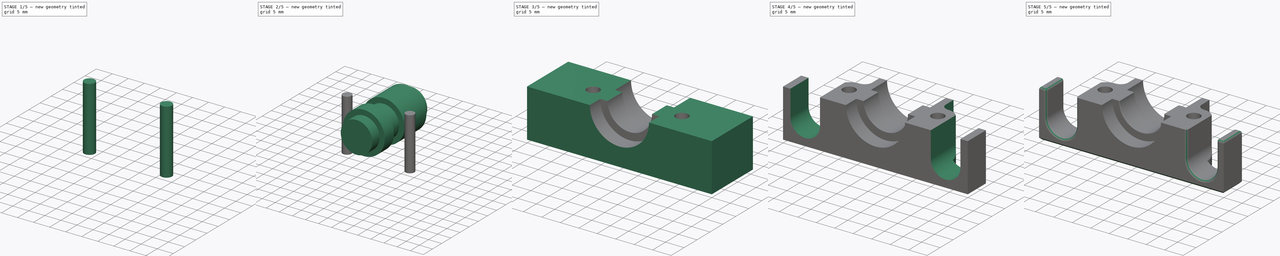
[diagram: build sequence overview — one tinted view per stage of 5, left to right]
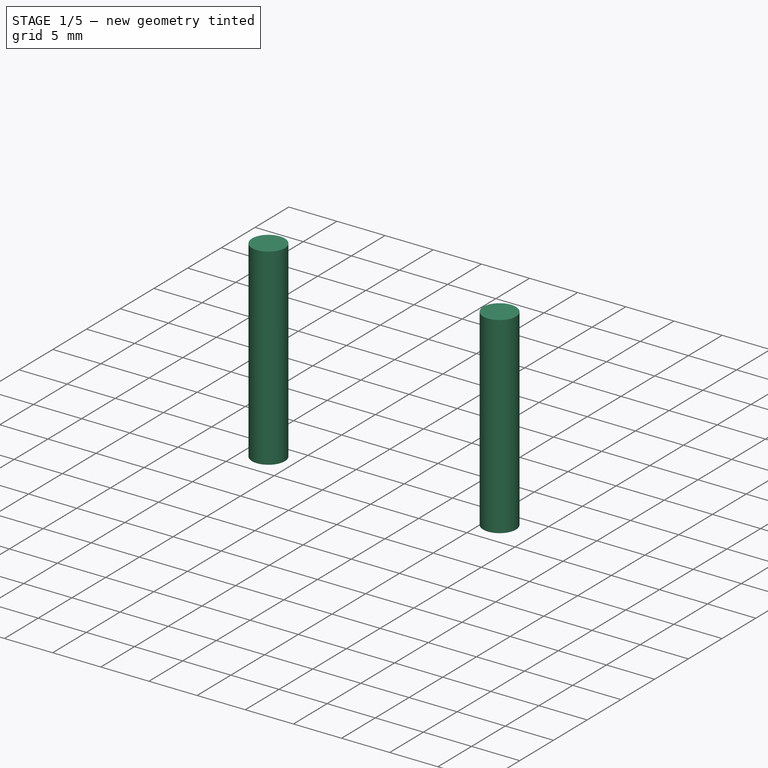
[diagram: stage 1 of 5 — iso view after this stage's code; geometry added in this stage tinted green]
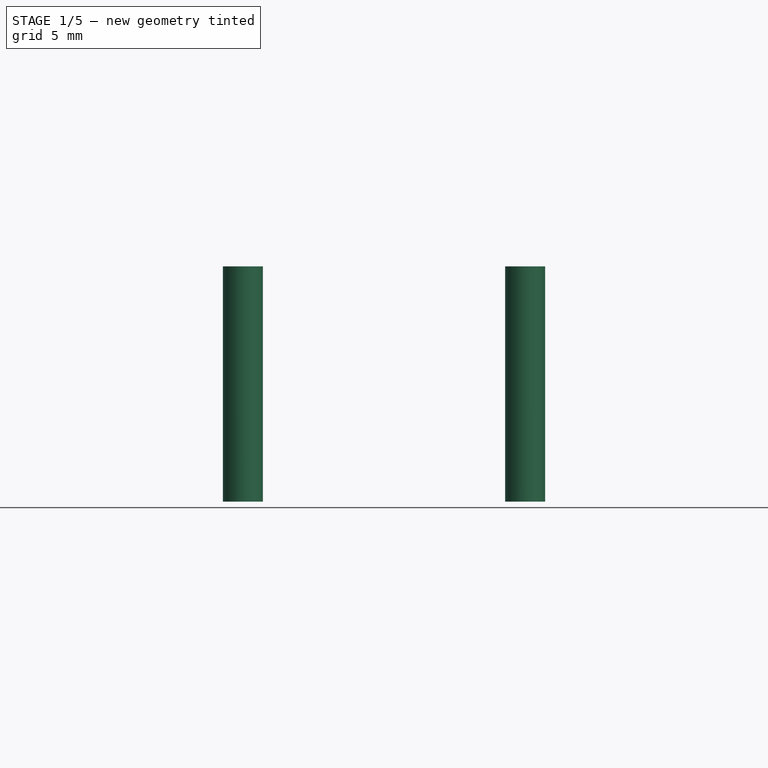
[diagram: stage 1 of 5 — front view after this stage's code; geometry added in this stage tinted green]
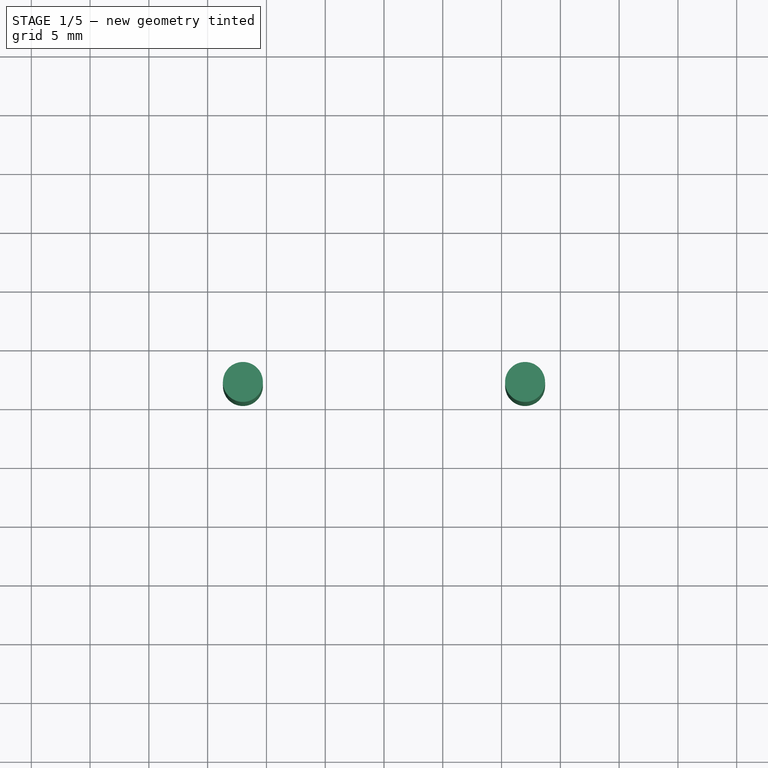
[diagram: stage 1 of 5 — top view after this stage's code; geometry added in this stage tinted green]
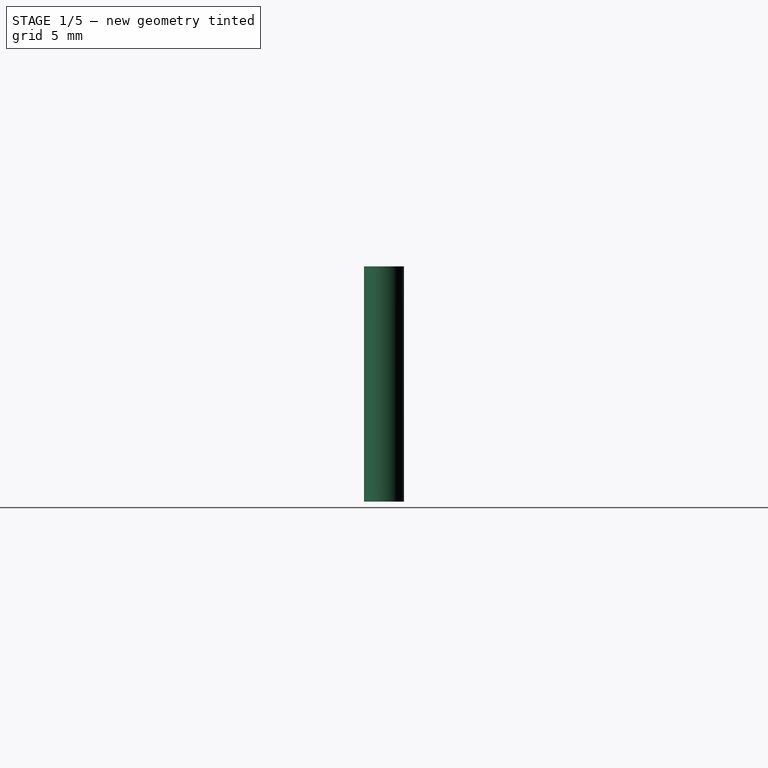
[diagram: stage 1 of 5 — right view after this stage's code; geometry added in this stage tinted green]
FCSTD DOCUMENT  (FreeCAD 0.16R6707 (Git))
Label: e3d_lalita_base
License: CreativeCommons Attribution-NonCommercial-ShareAlike
LicenseURL: http://creativecommons.org/licenses/by-nc-sa/4.0/
objects: Part::Cylinder×5, Part::MultiFuse×2, Part::Cut×2, Sketcher::SketchObject×2, PartDesign::Pocket×2, PartDesign::Fillet×2, Part::Box×1, PartDesign::Mirrored×1, PartDesign::Chamfer×1
note: 20 computed .brp shape members not serialized (recipe doc carries the construction recipe); baked Part::Feature solids carry a one-line shape summary decoded from their .brp

FEATURE [Part::Cylinder] Cylinder003  label="Cilindro003"
  Angle = 360
  Height = 20
  Placement = pos=(12,7,0) rot=(0,0,1;0rad)
  Radius = 1.7
FEATURE [Part::Cylinder] Cylinder004  label="Cilindro004"
  Angle = 360
  Height = 20
  Placement = pos=(-12,7,0) rot=(0,0,1;0rad)
  Radius = 1.7
FEATURE [Part::MultiFuse] Fusion001  label="tornillos"
  Shapes = -> [Cylinder003,Cylinder004]
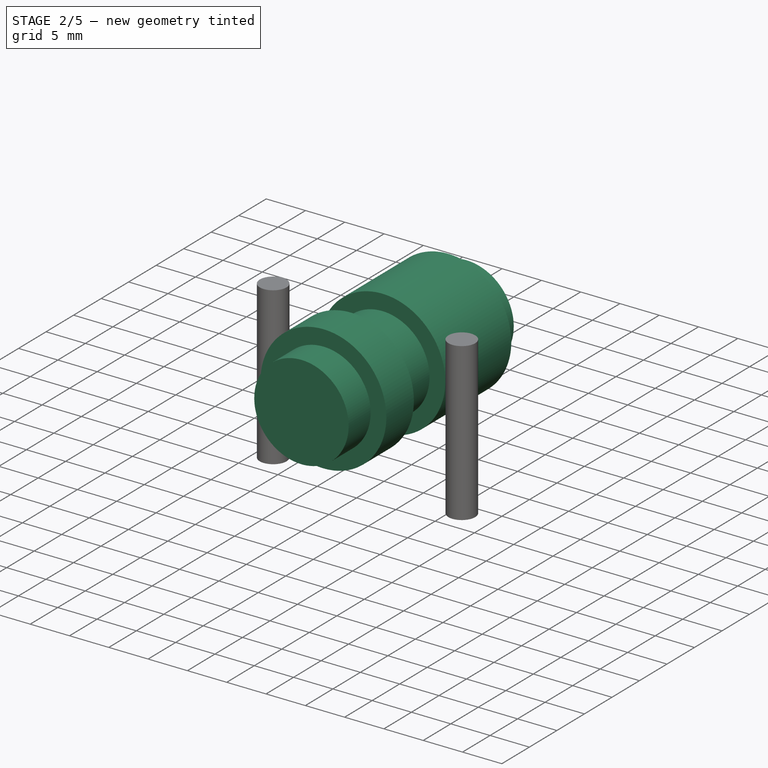
[diagram: stage 2 of 5 — iso view after this stage's code; geometry added in this stage tinted green]
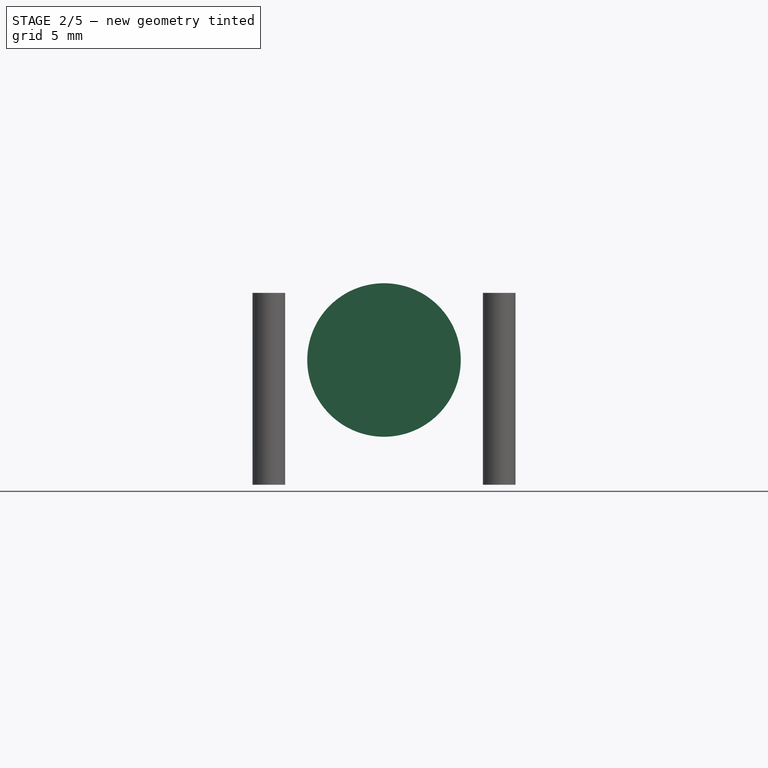
[diagram: stage 2 of 5 — front view after this stage's code; geometry added in this stage tinted green]
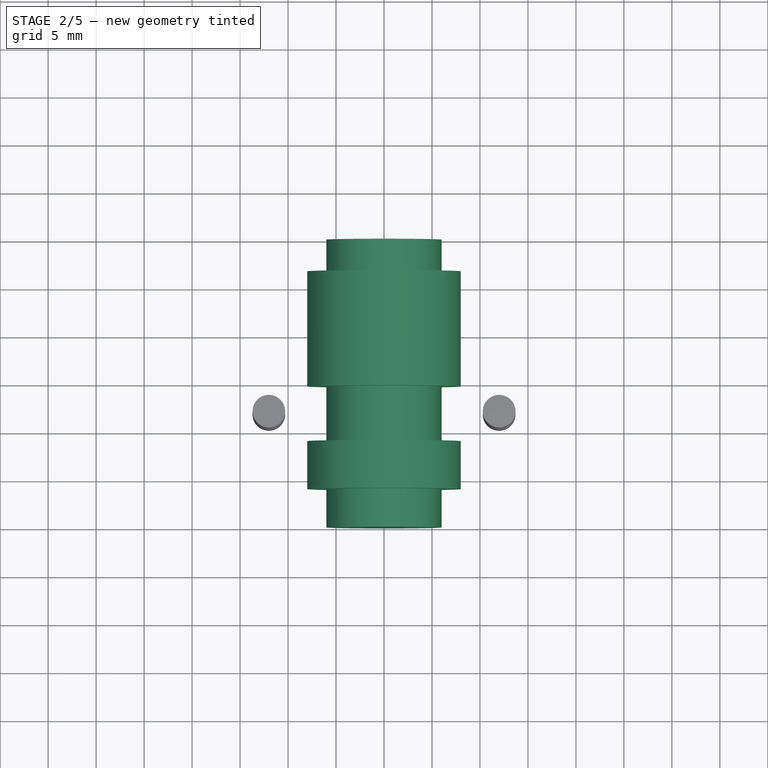
[diagram: stage 2 of 5 — top view after this stage's code; geometry added in this stage tinted green]
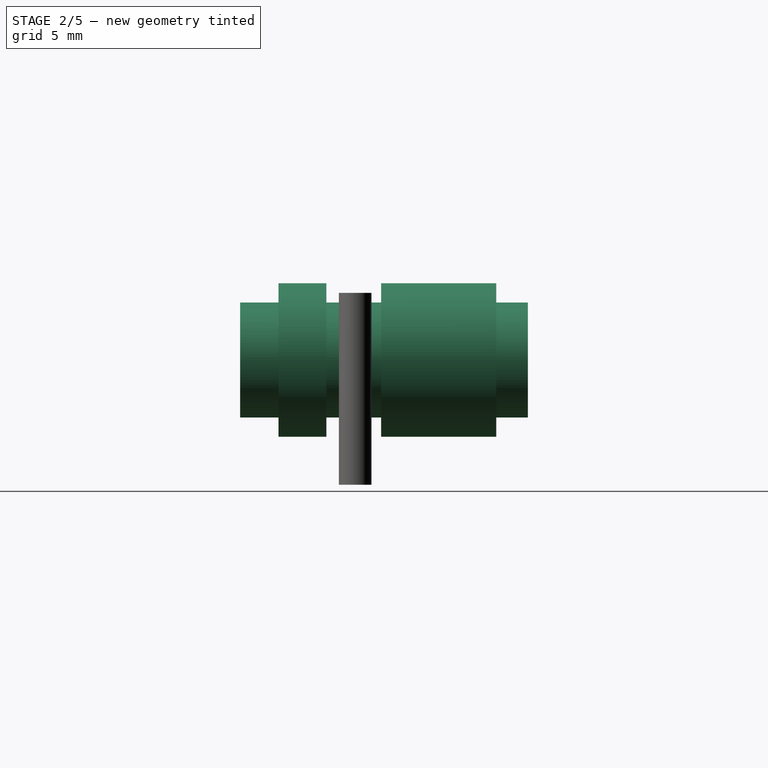
[diagram: stage 2 of 5 — right view after this stage's code; geometry added in this stage tinted green]
FEATURE [Part::Cylinder] Cylinder  label="Cilindro"
  Angle = 360
  Height = 30
  Placement = pos=(0,-5,13) rot=(-1,0,0;1.5708rad)
  Radius = 6
FEATURE [Part::Cylinder] Cylinder001  label="Cilindro001"
  Angle = 360
  Height = 5
  Placement = pos=(0,-1,13) rot=(-1,0,0;1.5708rad)
  Radius = 8
FEATURE [Part::Cylinder] Cylinder002  label="Cilindro002"
  Angle = 360
  Height = 12
  Placement = pos=(0,9.7,13) rot=(-1,0,0;1.5708rad)
  Radius = 8
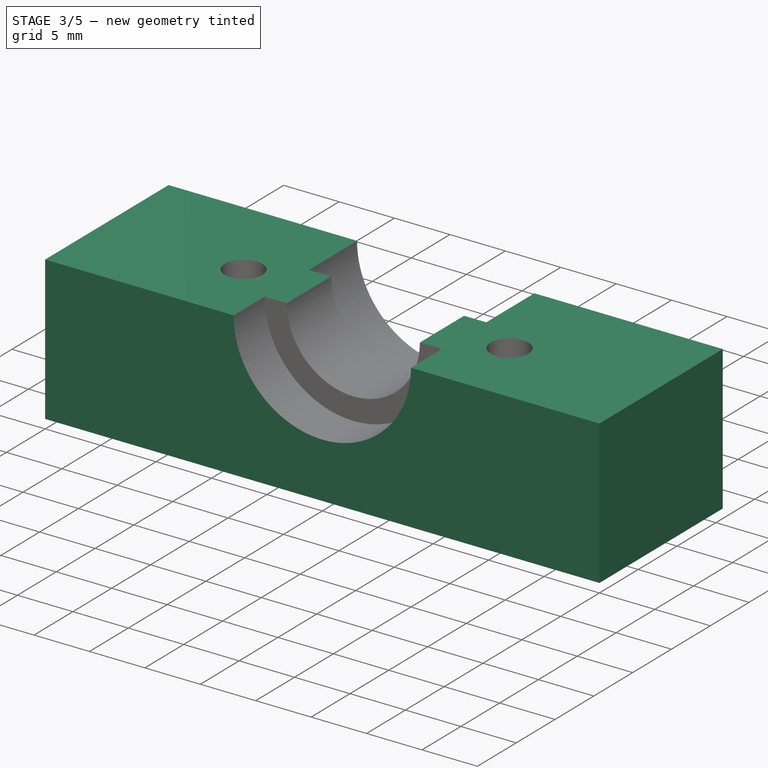
[diagram: stage 3 of 5 — iso view after this stage's code; geometry added in this stage tinted green]
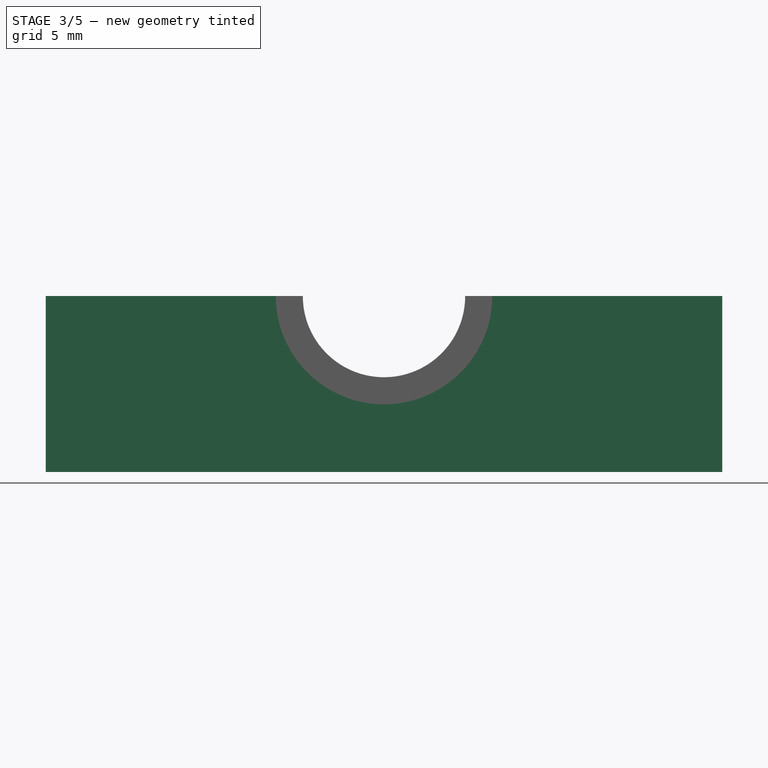
[diagram: stage 3 of 5 — front view after this stage's code; geometry added in this stage tinted green]
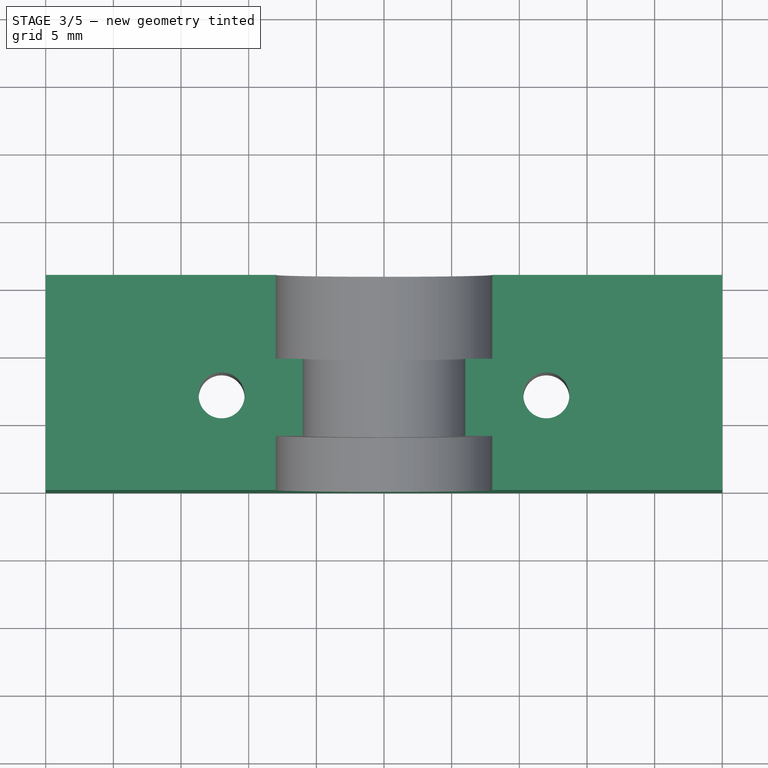
[diagram: stage 3 of 5 — top view after this stage's code; geometry added in this stage tinted green]
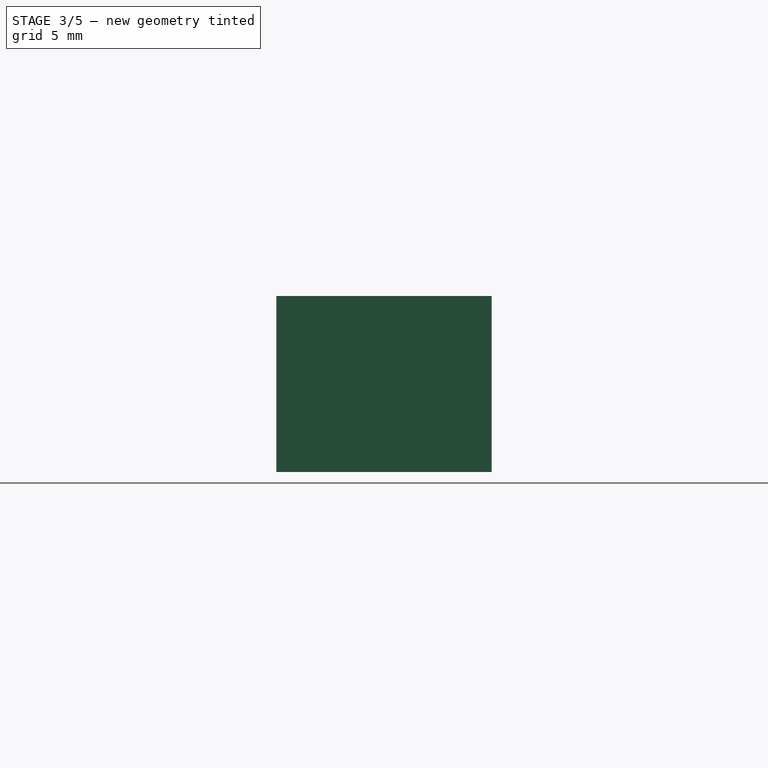
[diagram: stage 3 of 5 — right view after this stage's code; geometry added in this stage tinted green]
FEATURE [Part::Box] Box  label="Cubo"
  Height = 13
  Length = 50
  Placement = pos=(-25,0,0) rot=(0,0,1;0rad)
  Width = 15.9
FEATURE [Part::MultiFuse] Fusion  label="cabeza_hot_end"
  Shapes = -> [Cylinder002,Cylinder001,Cylinder]
FEATURE [Part::Cut] Cut
  Base = -> Box
  Tool = -> Fusion
FEATURE [Part::Cut] Cut001
  Base = -> Cut
  Tool = -> Fusion001
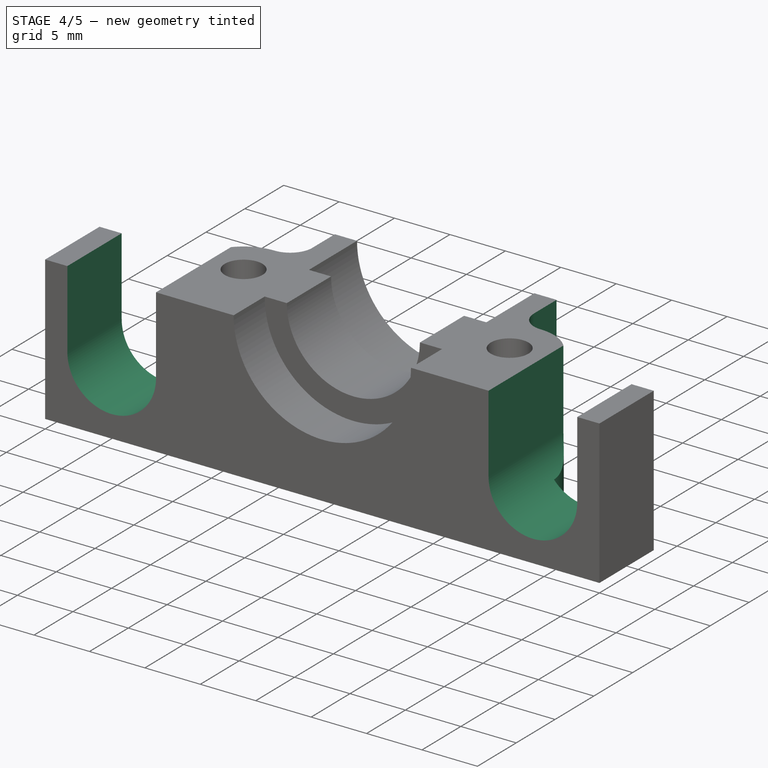
[diagram: stage 4 of 5 — iso view after this stage's code; geometry added in this stage tinted green]
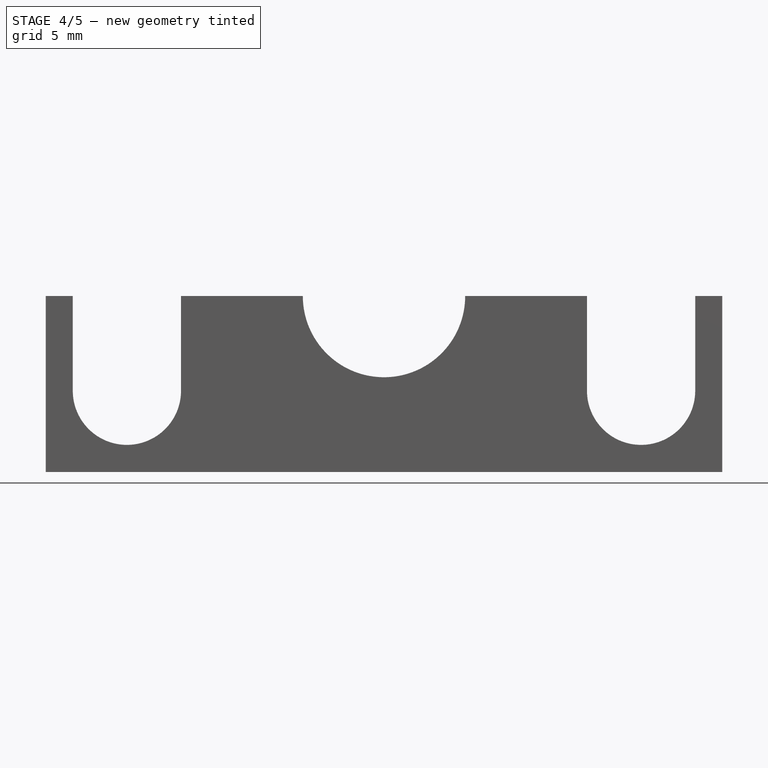
[diagram: stage 4 of 5 — front view after this stage's code; geometry added in this stage tinted green]
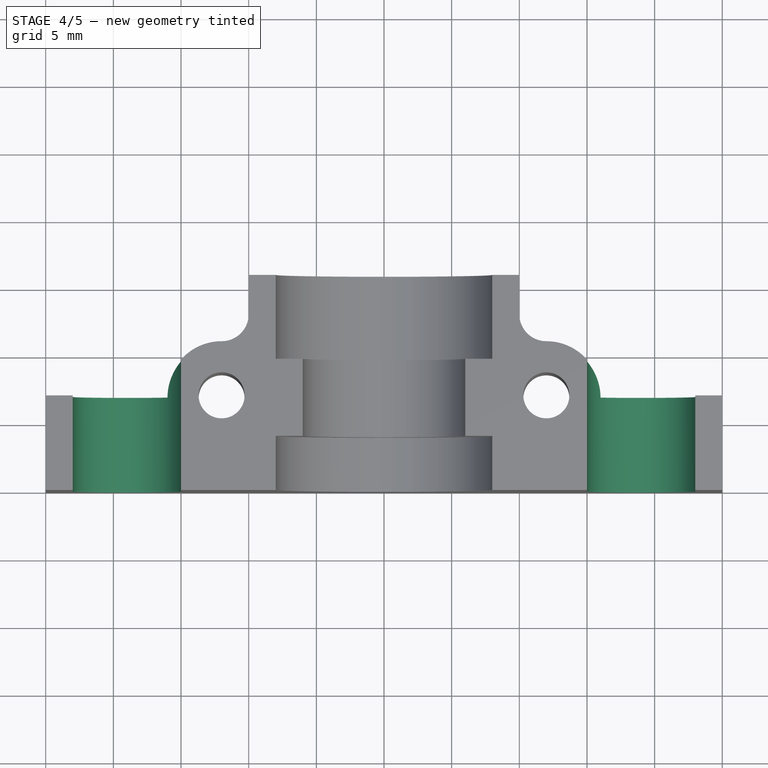
[diagram: stage 4 of 5 — top view after this stage's code; geometry added in this stage tinted green]
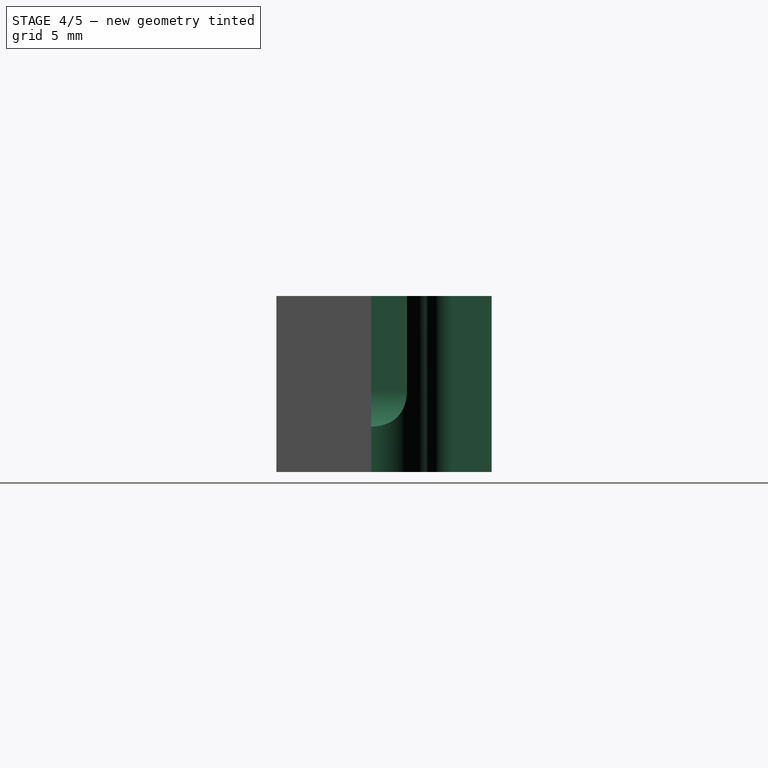
[diagram: stage 4 of 5 — right view after this stage's code; geometry added in this stage tinted green]
FEATURE [Sketcher::SketchObject] Sketch
  Placement = pos=(0,0,0) rot=(1,0,0;1.5708rad)
  Support = -> Cut001 [Face2]
  sketch-geometry (8):
    g0: ArcOfCircle CenterX=-19 CenterY=16 CenterZ=0 NormalX=0 NormalY=0 NormalZ=1 Radius=4 StartAngle=1e-12 EndAngle=3.14159
    g1: ArcOfCircle CenterX=-19 CenterY=6 CenterZ=0 NormalX=0 NormalY=0 NormalZ=1 Radius=4 StartAngle=3.14159 EndAngle=6.28319
    g2: LineSegment StartX=-23 StartY=16 StartZ=0 EndX=-23 EndY=6 EndZ=0
    g3: LineSegment StartX=-15 StartY=16 StartZ=0 EndX=-15 EndY=6 EndZ=0
    g4: ArcOfCircle CenterX=19 CenterY=16 CenterZ=0 NormalX=0 NormalY=0 NormalZ=1 Radius=4 StartAngle=5e-12 EndAngle=3.14159
    g5: ArcOfCircle CenterX=19 CenterY=6 CenterZ=0 NormalX=0 NormalY=0 NormalZ=1 Radius=4 StartAngle=3.14159 EndAngle=6.28319
    g6: LineSegment StartX=15 StartY=16 StartZ=0 EndX=15 EndY=6 EndZ=0
    g7: LineSegment StartX=23 StartY=16 StartZ=0 EndX=23 EndY=6 EndZ=0
  constraints (18):
    c: Tangent(g0,g3) = 1.5708
    c: Tangent(g0,g2) = -1.5708
    c: Tangent(g2,g1) = -1.5708
    c: Tangent(g3,g1) = 1.5708
    c: Vertical(g2)
    c: Equal(g0,g1)
    c: Radius(g1) = 4
    c: DistanceY(g3,g3) = 10
    c: DistanceY(g-1,g1) = 6
    c: DistanceX(g1,g-1) = 19
    c: Tangent(g4,g7) = 1.5708
    c: Tangent(g4,g6) = -1.5708
    c: Tangent(g6,g5) = -1.5708
    c: Tangent(g7,g5) = 1.5708
    c: Vertical(g6)
    c: Equal(g4,g5)
    c: Symmetric(g4,g0,g-2)
    c: Symmetric(g1,g5,g-2)
FEATURE [PartDesign::Pocket] Pocket
  Length = 5
  Sketch = -> Sketch
  Type = 1
FEATURE [Sketcher::SketchObject] Sketch001
  ExternalGeometry = -> [Pocket]
  Placement = pos=(0,0,13) rot=(0,0,1;0rad)
  Support = -> Pocket [Face10]
  sketch-geometry (7):
    g0: LineSegment StartX=-10 StartY=15.9 StartZ=0 EndX=-25 EndY=15.9 EndZ=0
    g1: LineSegment StartX=-25 StartY=15.9 StartZ=0 EndX=-25 EndY=7 EndZ=0
    g2: LineSegment StartX=-25 StartY=7 StartZ=0 EndX=-16 EndY=7 EndZ=0
    g3: ArcOfCircle CenterX=-12 CenterY=7 CenterZ=0 NormalX=0 NormalY=0 NormalZ=1 Radius=4 StartAngle=1.5708 EndAngle=3.14159
    g4: ArcOfCircle CenterX=-12 CenterY=13 CenterZ=0 NormalX=0 NormalY=0 NormalZ=1 Radius=2.00001 StartAngle=4.71239 EndAngle=6.28318
    g5: LineSegment StartX=-10 StartY=13 StartZ=0 EndX=-10 EndY=15.9 EndZ=0
    g6: LineSegment [constr] StartX=-12 StartY=7 StartZ=0 EndX=-12 EndY=11 EndZ=0
  constraints (20):
    c: PointOnObject(g0,g-4)
    c: Coincident(g0,g1)
    c: Vertical(g1)
    c: Coincident(g1,g2)
    c: Horizontal(g2)
    c: Coincident(g3,g-3)
    c: Coincident(g3,g2)
    c: Coincident(g4,g3)
    c: Coincident(g5,g4)
    c: Coincident(g5,g0)
    c: Vertical(g5)
    c: DistanceX(g0,g-4) = 2
    c: PointOnObject(g3,g2)
    c: Tangent(g3,g4)
    c: Coincident(g6,g3)
    c: Coincident(g6,g3)
    c: Vertical(g6)
    c: Tangent(g4,g5)
    c: Coincident(g0,g-5)
    c: DistanceY(g6,g6) = 4
FEATURE [PartDesign::Pocket] Pocket001
  Length = 5
  Sketch = -> Sketch001
  Type = 1
FEATURE [PartDesign::Mirrored] Mirrored
  MirrorPlane = -> Sketch001 [V_Axis]
  Originals = -> [Pocket001]
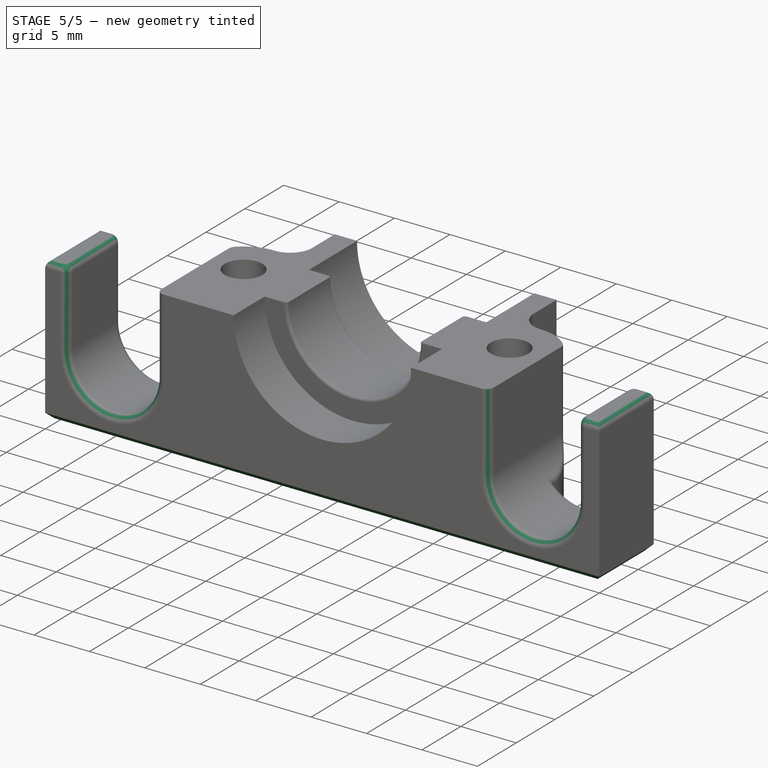
[diagram: stage 5 of 5 — iso view after this stage's code; geometry added in this stage tinted green]
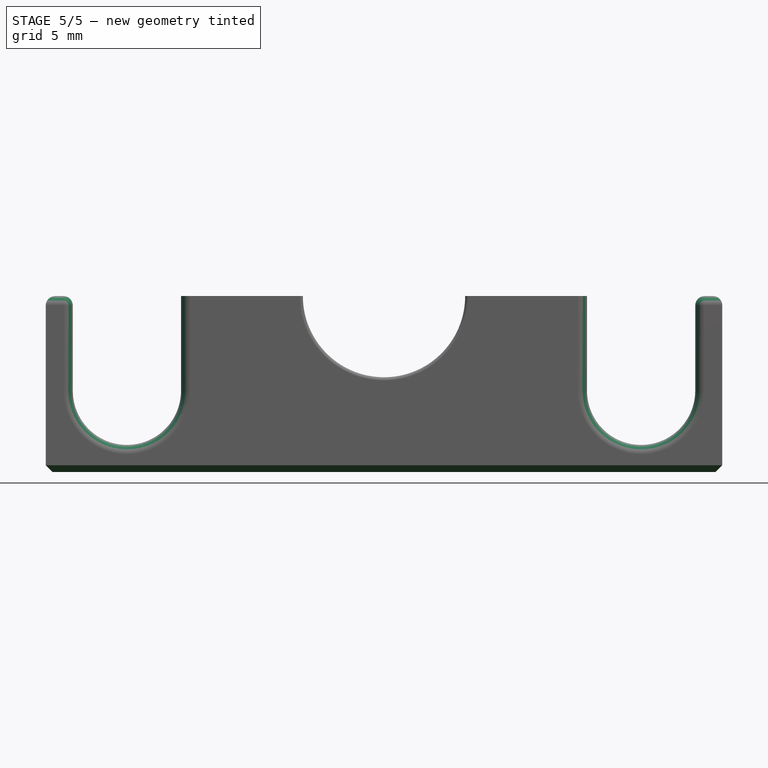
[diagram: stage 5 of 5 — front view after this stage's code; geometry added in this stage tinted green]
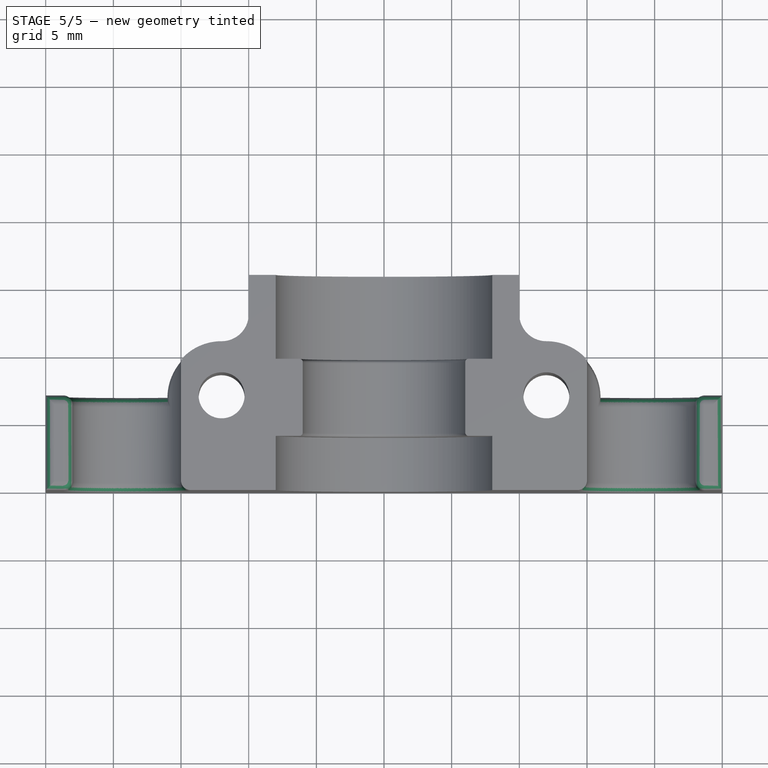
[diagram: stage 5 of 5 — top view after this stage's code; geometry added in this stage tinted green]
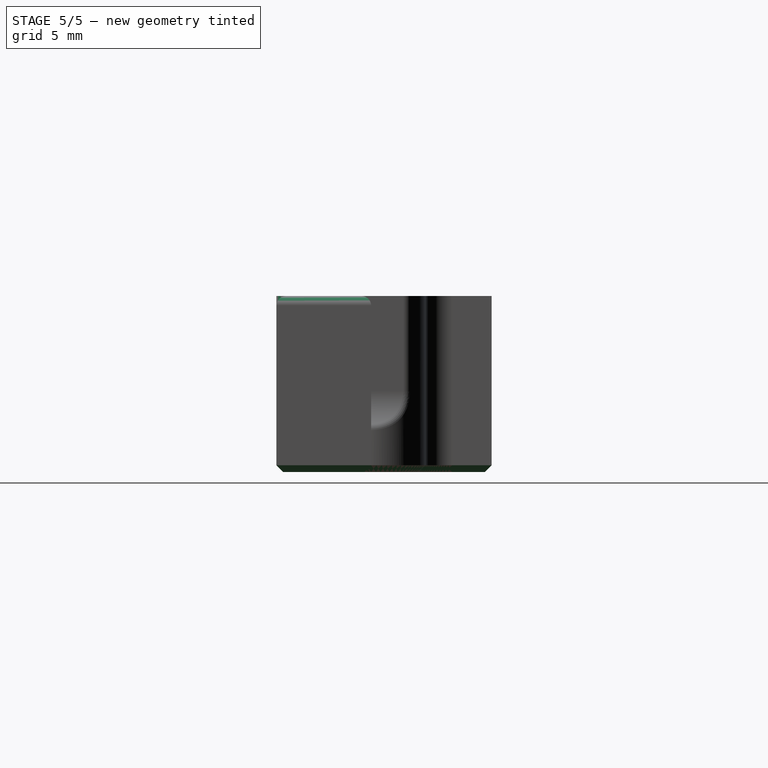
[diagram: stage 5 of 5 — right view after this stage's code; geometry added in this stage tinted green]
FEATURE [PartDesign::Fillet] Fillet
  Base = -> Mirrored [Edge59,Edge58,Edge54,Edge55,Edge8,Edge9,Edge37,Edge39,Edge25,Edge26,Edge31,Edge32,Edge27,Edge33,Edge5,Edge6,Edge1,Edge7,Edge57,Edge61,Edge24,Edge66]
  Radius = 0.7
FEATURE [PartDesign::Fillet] Fillet001
  Base = -> Fillet [Edge134,Edge135]
  Radius = 0.25
FEATURE [PartDesign::Chamfer] Chamfer
  Base = -> Fillet001 [Edge73,Edge74,Edge75,Edge76,Edge71,Edge28,Edge32,Edge36,Edge42,Edge77,Edge78,Edge54,Edge63,Edge79]
  Size = 0.5
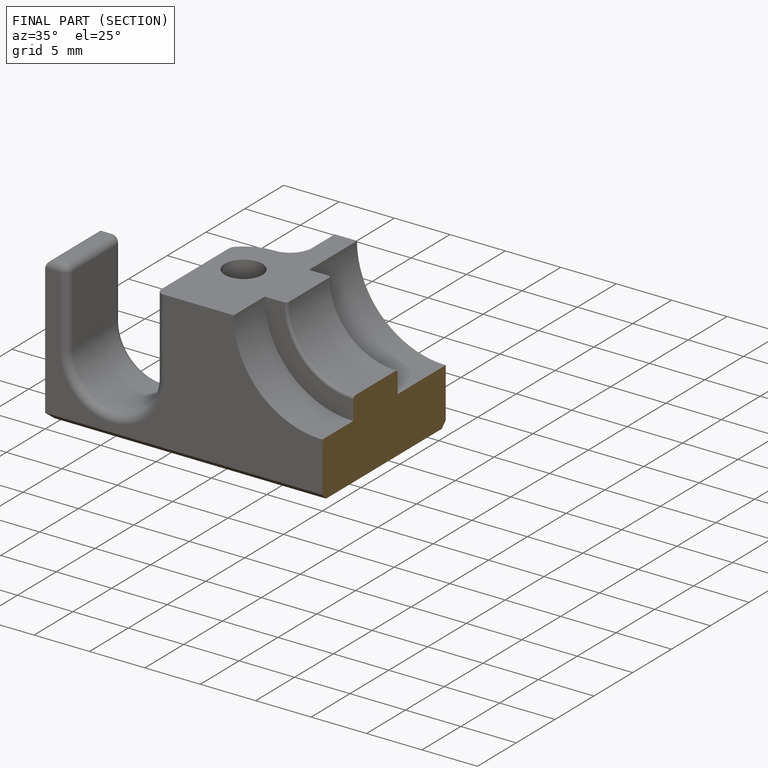
[diagram: finished part — half-section view (interior)]
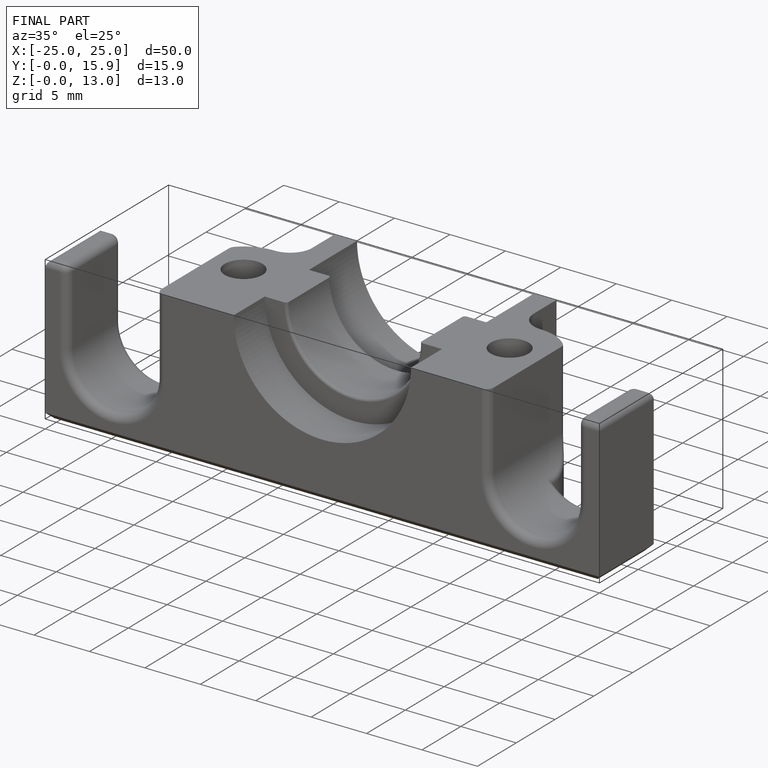
[diagram: finished part — iso view with bounding-box wireframe]
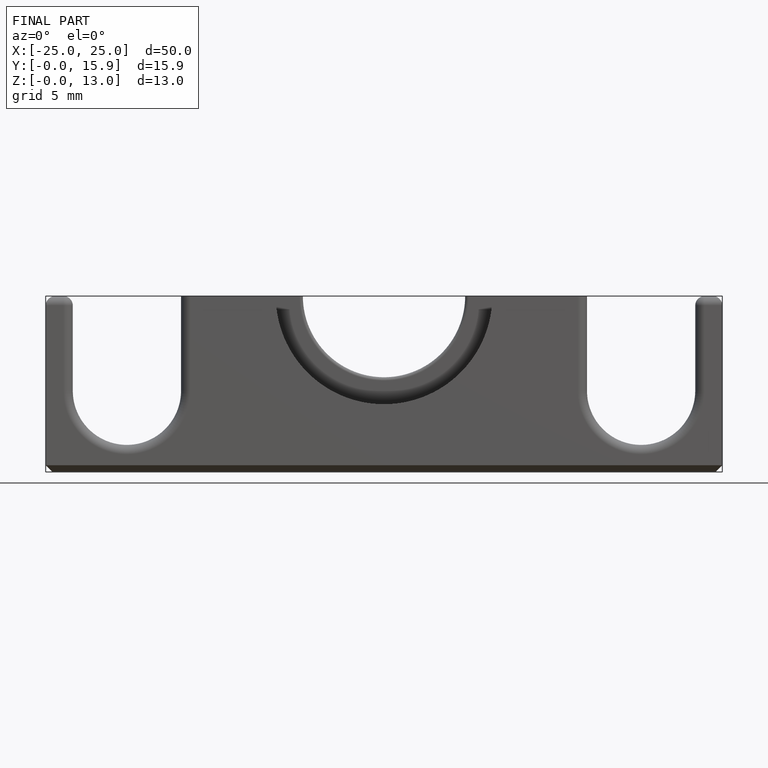
[diagram: finished part — front view with bounding-box wireframe]
